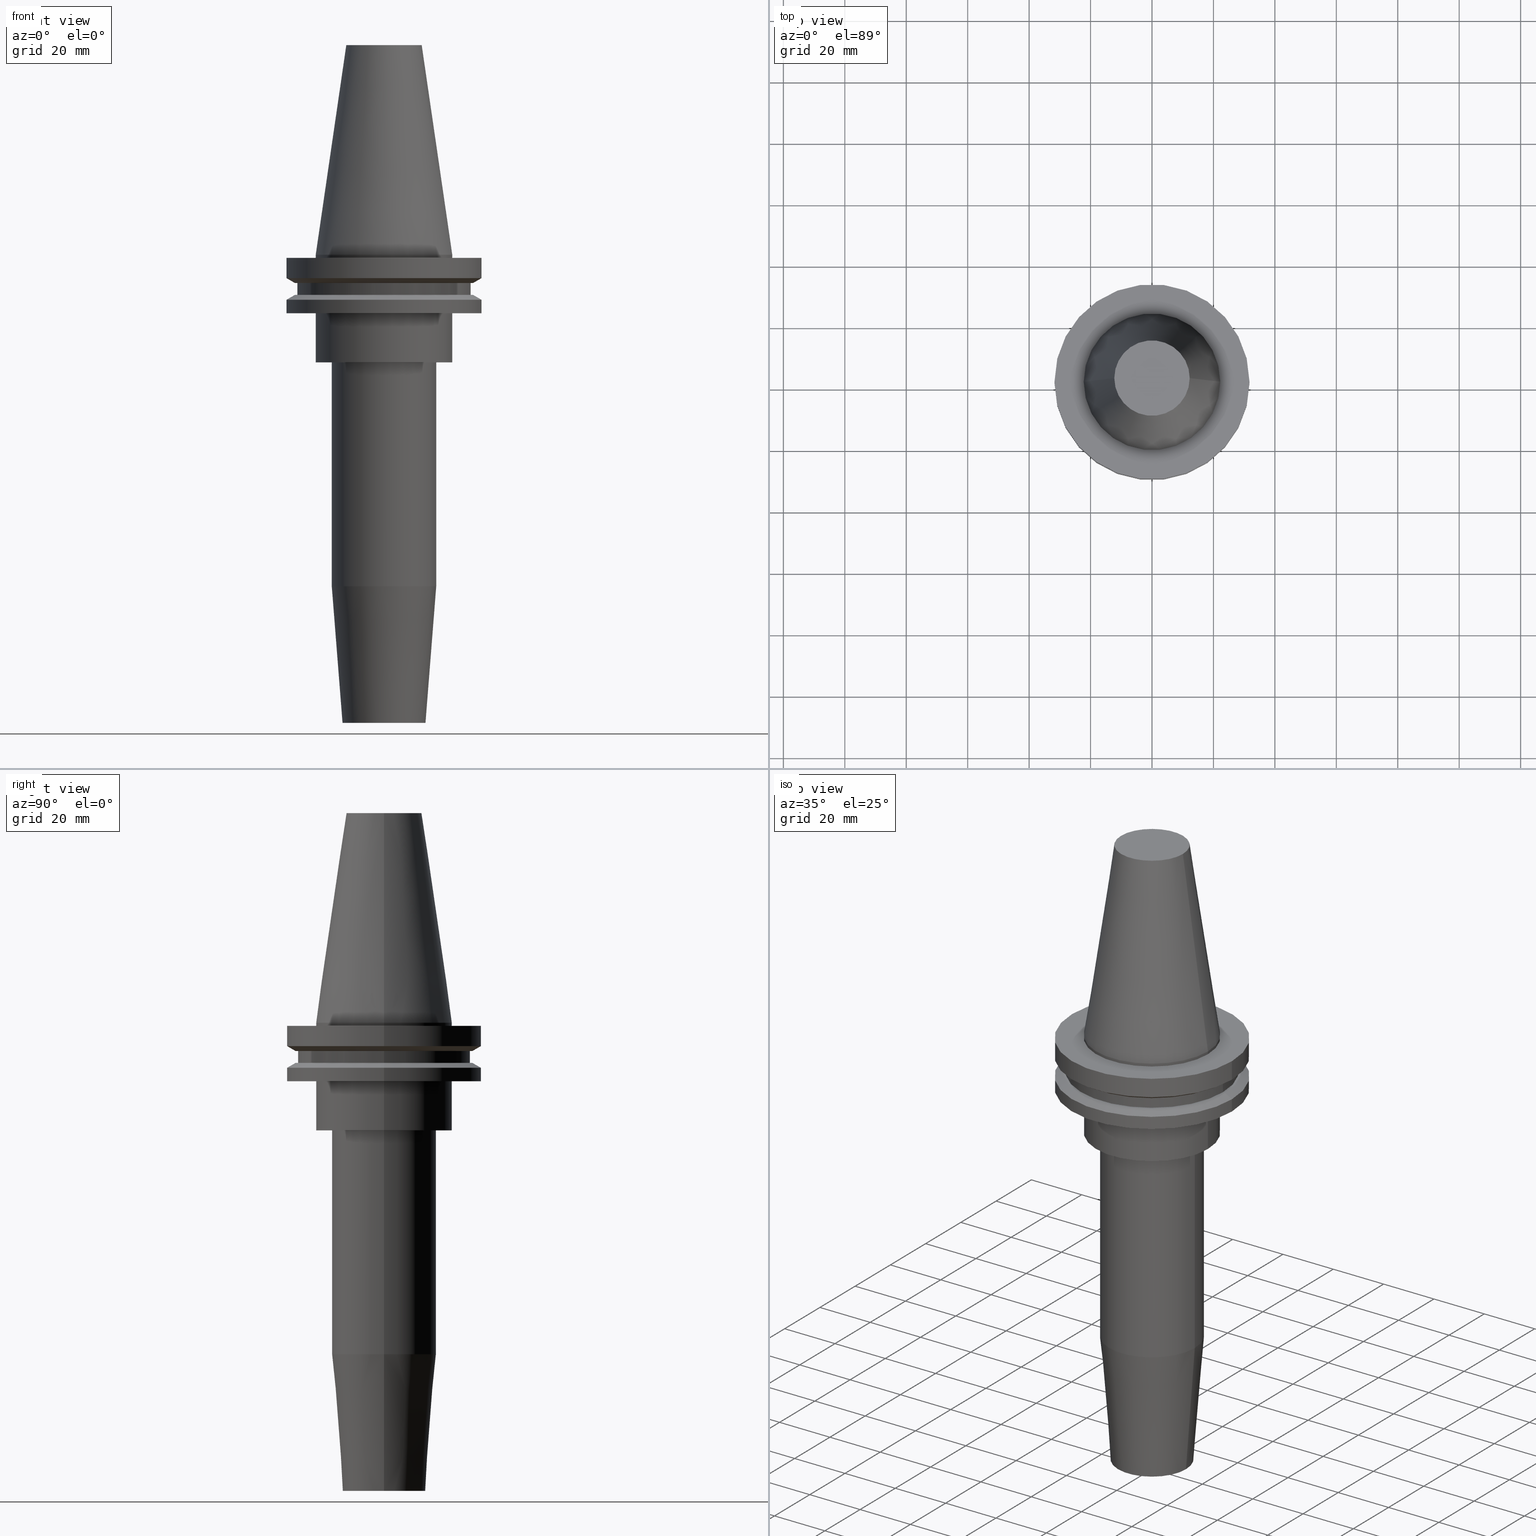
[diagram: canonical four-view strip — front | top / right | iso, engineering-drawing reading convention]
A machine part, canonical four-view strip (front | top / right | iso — engineering-drawing reading convention). The complete STEP part file that produces these views, byte-faithful:
ISO-10303-21;
HEADER;
FILE_DESCRIPTION (( 'STEP AP203' ),
    '1' );
FILE_NAME ('BCV40-SF_625-6.STEP',
    '2022-02-23T17:23:49',
    ( '' ),
    ( '' ),
    'SwSTEP 2.0',
    'SolidWorks 2021',
    '' );
FILE_SCHEMA (( 'CONFIG_CONTROL_DESIGN' ));
ENDSEC;

DATA;
#1 = ORIENTED_EDGE ( 'NONE', *, *, #366, .F. ) ;
#2 = EDGE_CURVE ( 'NONE', #299, #67, #97, .T. ) ;
#3 = CARTESIAN_POINT ( 'NONE',  ( 17.00000000000000000, 0.000000000000000000, -35.04999999999999716 ) ) ;
#4 = DIRECTION ( 'NONE',  ( 1.000000000000000000, 0.000000000000000000, 0.000000000000000000 ) ) ;
#5 = EDGE_LOOP ( 'NONE', ( #167, #199 ) ) ;
#6 = CARTESIAN_POINT ( 'NONE',  ( 12.27178102086201150, 2.112318622904291439E-15, 68.25000000000000000 ) ) ;
#7 = CC_DESIGN_PERSON_AND_ORGANIZATION_ASSIGNMENT ( #710, #705, ( #155 ) ) ;
#8 = AXIS2_PLACEMENT_3D ( 'NONE', #583, #180, #390 ) ;
#9 = DIRECTION ( 'NONE',  ( -0.000000000000000000, -0.000000000000000000, 1.000000000000000000 ) ) ;
#10 = DIRECTION ( 'NONE',  ( -0.000000000000000000, -0.000000000000000000, 1.000000000000000000 ) ) ;
#11 = CARTESIAN_POINT ( 'NONE',  ( 0.000000000000000000, 0.000000000000000000, 68.25000000000000000 ) ) ;
#12 = CIRCLE ( 'NONE', #752, 31.74999999999999289 ) ;
#13 = DIRECTION ( 'NONE',  ( 1.000000000000000000, 0.000000000000000000, 0.000000000000000000 ) ) ;
#14 = CARTESIAN_POINT ( 'NONE',  ( 0.000000000000000000, 13.50000000000000000, -152.4000000000000057 ) ) ;
#15 = ORIENTED_EDGE ( 'NONE', *, *, #812, .T. ) ;
#16 = DIRECTION ( 'NONE',  ( 1.000000000000000000, 0.000000000000000000, 0.000000000000000000 ) ) ;
#17 = CARTESIAN_POINT ( 'NONE',  ( 0.000000000000000000, 0.000000000000000000, -1.000000000000000888 ) ) ;
#18 = EDGE_CURVE ( 'NONE', #796, #535, #21, .T. ) ;
#19 = ORIENTED_EDGE ( 'NONE', *, *, #132, .T. ) ;
#20 = LINE ( 'NONE', #603, #300 ) ;
#21 = LINE ( 'NONE', #347, #446 ) ;
#22 = CONICAL_SURFACE ( 'NONE', #262, 31.75000000000000000, 1.047197551196597853 ) ;
#23 = DIRECTION ( 'NONE',  ( 1.000000000000000000, 0.000000000000000000, 0.000000000000000000 ) ) ;
#24 = ORIENTED_EDGE ( 'NONE', *, *, #66, .F. ) ;
#25 = EDGE_CURVE ( 'NONE', #273, #619, #287, .T. ) ;
#26 = DIRECTION ( 'NONE',  ( 0.1443082272672999711, 1.767266086135276757E-17, -0.9895327864921755756 ) ) ;
#27 = CC_DESIGN_PERSON_AND_ORGANIZATION_ASSIGNMENT ( #630, #50, ( #215 ) ) ;
#28 = CARTESIAN_POINT ( 'NONE',  ( 13.50000000000000000, 0.000000000000000000, -152.4000000000000057 ) ) ;
#29 = CIRCLE ( 'NONE', #477, 12.27178102086201150 ) ;
#30 = EDGE_LOOP ( 'NONE', ( #708, #122 ) ) ;
#31 = CONICAL_SURFACE ( 'NONE', #553, 22.22500000000000142, 0.1448138465474119174 ) ;
#32 = AXIS2_PLACEMENT_3D ( 'NONE', #52, #640, #108 ) ;
#33 = DIRECTION ( 'NONE',  ( -1.000000000000000000, 0.000000000000000000, 0.000000000000000000 ) ) ;
#34 = VERTEX_POINT ( 'NONE', #494 ) ;
#35 = VECTOR ( 'NONE', #444, 1000.000000000000000 ) ;
#36 = CARTESIAN_POINT ( 'NONE',  ( 0.000000000000000000, 0.000000000000000000, -9.205000000000005400 ) ) ;
#37 = ORIENTED_EDGE ( 'NONE', *, *, #99, .T. ) ;
#38 = EDGE_CURVE ( 'NONE', #67, #299, #433, .T. ) ;
#39 = DIRECTION ( 'NONE',  ( 1.000000000000000000, 0.000000000000000000, 0.000000000000000000 ) ) ;
#40 = EDGE_LOOP ( 'NONE', ( #538, #83, #628, #326 ) ) ;
#41 = CARTESIAN_POINT ( 'NONE',  ( 0.000000000000000000, 0.000000000000000000, -1.000000000000000888 ) ) ;
#42 = DIRECTION ( 'NONE',  ( 1.000000000000000000, 0.000000000000000000, 0.000000000000000000 ) ) ;
#43 = ORIENTED_EDGE ( 'NONE', *, *, #318, .F. ) ;
#44 = CC_DESIGN_SECURITY_CLASSIFICATION ( #435, ( #215 ) ) ;
#45 = COORDINATED_UNIVERSAL_TIME_OFFSET ( 6, 0, .BEHIND. ) ;
#46 = DIRECTION ( 'NONE',  ( -0.000000000000000000, -0.000000000000000000, 1.000000000000000000 ) ) ;
#47 = EDGE_CURVE ( 'NONE', #517, #476, #29, .T. ) ;
#48 = DIRECTION ( 'NONE',  ( -0.000000000000000000, -0.000000000000000000, 1.000000000000000000 ) ) ;
#49 = ORIENTED_EDGE ( 'NONE', *, *, #2, .T. ) ;
#50 = PERSON_AND_ORGANIZATION_ROLE ( 'design_supplier' ) ;
#51 = DIRECTION ( 'NONE',  ( -0.000000000000000000, -0.000000000000000000, 1.000000000000000000 ) ) ;
#52 = CARTESIAN_POINT ( 'NONE',  ( 0.000000000000000000, 0.000000000000000000, -9.204999999999991189 ) ) ;
#53 = VERTEX_POINT ( 'NONE', #71 ) ;
#54 = AXIS2_PLACEMENT_3D ( 'NONE', #41, #321, #315 ) ;
#55 = APPROVAL_ROLE ( '' ) ;
#56 = CYLINDRICAL_SURFACE ( 'NONE', #205, 17.00000000000000000 ) ;
#57 = VECTOR ( 'NONE', #609, 1000.000000000000000 ) ;
#58 = VERTEX_POINT ( 'NONE', #338 ) ;
#59 = AXIS2_PLACEMENT_3D ( 'NONE', #680, #817, #88 ) ;
#60 = EDGE_CURVE ( 'NONE', #61, #790, #620, .T. ) ;
#61 = VERTEX_POINT ( 'NONE', #556 ) ;
#62 = DIRECTION ( 'NONE',  ( 1.000000000000000000, 0.000000000000000000, 0.000000000000000000 ) ) ;
#63 = CONICAL_SURFACE ( 'NONE', #593, 28.97919780457007732, 1.047197551196598297 ) ;
#64 = FACE_OUTER_BOUND ( 'NONE', #704, .T. ) ;
#65 = VERTEX_POINT ( 'NONE', #815 ) ;
#66 = EDGE_CURVE ( 'NONE', #428, #535, #150, .T. ) ;
#67 = VERTEX_POINT ( 'NONE', #402 ) ;
#68 = MANIFOLD_SOLID_BREP ( 'SF', #283 ) ;
#69 = PLANE ( 'NONE',  #736 ) ;
#70 = DIRECTION ( 'NONE',  ( 1.000000000000000000, 0.000000000000000000, 0.000000000000000000 ) ) ;
#71 = CARTESIAN_POINT ( 'NONE',  ( -31.75000000000000000, 3.888253587292846476E-15, -1.000000000000000888 ) ) ;
#72 = ORIENTED_EDGE ( 'NONE', *, *, #313, .T. ) ;
#73 = FACE_OUTER_BOUND ( 'NONE', #193, .T. ) ;
#74 = DIRECTION ( 'NONE',  ( -0.000000000000000000, -0.000000000000000000, 1.000000000000000000 ) ) ;
#75 = PLANE ( 'NONE',  #95 ) ;
#76 = ORIENTED_EDGE ( 'NONE', *, *, #128, .F. ) ;
#77 = CARTESIAN_POINT ( 'NONE',  ( 31.75000000000000000, 0.000000000000000000, -1.000000000000000888 ) ) ;
#78 = LOCAL_TIME ( 11, 23, 49.00000000000000000, #233 ) ;
#79 = DIRECTION ( 'NONE',  ( -0.000000000000000000, -0.000000000000000000, 1.000000000000000000 ) ) ;
#80 = ADVANCED_FACE ( 'NONE', ( #660 ), #650, .T. ) ;
#81 = CARTESIAN_POINT ( 'NONE',  ( 31.75000000000000000, 3.888253587292846476E-15, -14.65472339340266572 ) ) ;
#82 = DIRECTION ( 'NONE',  ( 0.000000000000000000, -0.000000000000000000, 1.000000000000000000 ) ) ;
#83 = ORIENTED_EDGE ( 'NONE', *, *, #686, .T. ) ;
#84 = CARTESIAN_POINT ( 'NONE',  ( -22.22499999999999787, 2.721777511104992454E-15, -35.04999999999999716 ) ) ;
#85 = VERTEX_POINT ( 'NONE', #267 ) ;
#86 = CIRCLE ( 'NONE', #54, 31.75000000000000000 ) ;
#87 = EDGE_CURVE ( 'NONE', #53, #403, #246, .T. ) ;
#88 = DIRECTION ( 'NONE',  ( 1.000000000000000000, 0.000000000000000000, 0.000000000000000000 ) ) ;
#89 = CARTESIAN_POINT ( 'NONE',  ( 31.75000000000000000, 0.000000000000000000, -7.605276606597335842 ) ) ;
#90 = AXIS2_PLACEMENT_3D ( 'NONE', #676, #74, #4 ) ;
#91 = AXIS2_PLACEMENT_3D ( 'NONE', #480, #148, #464 ) ;
#92 = CARTESIAN_POINT ( 'NONE',  ( 0.000000000000000000, 0.000000000000000000, -35.04999999999999716 ) ) ;
#93 = DIRECTION ( 'NONE',  ( 1.000000000000000000, 0.000000000000000000, 0.000000000000000000 ) ) ;
#94 = EDGE_CURVE ( 'NONE', #237, #164, #573, .T. ) ;
#95 = AXIS2_PLACEMENT_3D ( 'NONE', #14, #82, #351 ) ;
#96 = ORIENTED_EDGE ( 'NONE', *, *, #348, .T. ) ;
#97 = CIRCLE ( 'NONE', #587, 17.00000000000000000 ) ;
#98 = CARTESIAN_POINT ( 'NONE',  ( 0.000000000000000000, 0.000000000000000000, 0.000000000000000000 ) ) ;
#99 = EDGE_CURVE ( 'NONE', #127, #731, #673, .T. ) ;
#100 = VERTEX_POINT ( 'NONE', #134 ) ;
#101 = CIRCLE ( 'NONE', #382, 22.22500000000000142 ) ;
#102 = COORDINATED_UNIVERSAL_TIME_OFFSET ( 6, 0, .BEHIND. ) ;
#103 = DIRECTION ( 'NONE',  ( -0.000000000000000000, -0.000000000000000000, 1.000000000000000000 ) ) ;
#104 = VERTEX_POINT ( 'NONE', #665 ) ;
#105 = ADVANCED_FACE ( 'NONE', ( #739, #677 ), #75, .F. ) ;
#106 = DATE_AND_TIME ( #644, #653 ) ;
#107 = CARTESIAN_POINT ( 'NONE',  ( -22.22500000000000142, 0.000000000000000000, 0.000000000000000000 ) ) ;
#108 = DIRECTION ( 'NONE',  ( 1.000000000000000000, 0.000000000000000000, 0.000000000000000000 ) ) ;
#109 = ORIENTED_EDGE ( 'NONE', *, *, #266, .F. ) ;
#110 = EDGE_CURVE ( 'NONE', #65, #160, #778, .T. ) ;
#111 = APPROVAL_STATUS ( 'not_yet_approved' ) ;
#112 = CARTESIAN_POINT ( 'NONE',  ( 0.000000000000000000, 0.000000000000000000, -152.4000000000000057 ) ) ;
#113 = CARTESIAN_POINT ( 'NONE',  ( 0.000000000000000000, 0.000000000000000000, -14.65472339340266572 ) ) ;
#114 = ORIENTED_EDGE ( 'NONE', *, *, #845, .T. ) ;
#115 = APPROVAL_ROLE ( '' ) ;
#116 = DIRECTION ( 'NONE',  ( 1.000000000000000000, 0.000000000000000000, 0.000000000000000000 ) ) ;
#117 = FACE_OUTER_BOUND ( 'NONE', #718, .T. ) ;
#118 = ORIENTED_EDGE ( 'NONE', *, *, #518, .F. ) ;
#119 = CALENDAR_DATE ( 2022, 23, 2 ) ;
#120 = CARTESIAN_POINT ( 'NONE',  ( 0.000000000000000000, 0.000000000000000000, -152.4000000000000057 ) ) ;
#121 = DIRECTION ( 'NONE',  ( -0.000000000000000000, -0.000000000000000000, 1.000000000000000000 ) ) ;
#122 = ORIENTED_EDGE ( 'NONE', *, *, #94, .F. ) ;
#123 = ORIENTED_EDGE ( 'NONE', *, *, #616, .F. ) ;
#124 = AXIS2_PLACEMENT_3D ( 'NONE', #777, #439, #184 ) ;
#125 = FACE_BOUND ( 'NONE', #486, .T. ) ;
#126 = CARTESIAN_POINT ( 'NONE',  ( 0.000000000000000000, 0.000000000000000000, -13.05499999999999794 ) ) ;
#127 = VERTEX_POINT ( 'NONE', #28 ) ;
#128 = EDGE_CURVE ( 'NONE', #198, #104, #584, .T. ) ;
#129 = LINE ( 'NONE', #201, #272 ) ;
#130 = DIRECTION ( 'NONE',  ( 1.000000000000000000, 0.000000000000000000, 0.000000000000000000 ) ) ;
#131 = ORIENTED_EDGE ( 'NONE', *, *, #87, .T. ) ;
#132 = EDGE_CURVE ( 'NONE', #127, #34, #520, .T. ) ;
#133 = CYLINDRICAL_SURFACE ( 'NONE', #816, 17.00000000000000000 ) ;
#134 = CARTESIAN_POINT ( 'NONE',  ( 22.22500000000000142, 2.721777511104992849E-15, 0.000000000000000000 ) ) ;
#135 = APPLICATION_CONTEXT ( 'configuration controlled 3d designs of mechanical parts and assemblies' ) ;
#136 = ORIENTED_EDGE ( 'NONE', *, *, #559, .F. ) ;
#137 = EDGE_CURVE ( 'NONE', #513, #58, #421, .T. ) ;
#138 = VECTOR ( 'NONE', #271, 1000.000000000000000 ) ;
#139 = DIRECTION ( 'NONE',  ( -0.8660254037844389297, 1.060575238724907285E-16, 0.4999999999999995004 ) ) ;
#140 = CARTESIAN_POINT ( 'NONE',  ( 0.000000000000000000, 0.000000000000000000, 68.25000000000000000 ) ) ;
#141 = DIRECTION ( 'NONE',  ( 1.000000000000000000, 0.000000000000000000, 0.000000000000000000 ) ) ;
#142 = APPROVAL_PERSON_ORGANIZATION ( #771, #542, #115 ) ;
#143 =( GEOMETRIC_REPRESENTATION_CONTEXT ( 3 ) GLOBAL_UNCERTAINTY_ASSIGNED_CONTEXT ( ( #642 ) ) GLOBAL_UNIT_ASSIGNED_CONTEXT ( ( #501, #569, #350 ) ) REPRESENTATION_CONTEXT ( 'NONE', 'WORKASPACE' ) );
#144 = DIRECTION ( 'NONE',  ( -0.000000000000000000, -0.000000000000000000, 1.000000000000000000 ) ) ;
#145 = ORIENTED_EDGE ( 'NONE', *, *, #25, .T. ) ;
#146 = AXIS2_PLACEMENT_3D ( 'NONE', #550, #487, #345 ) ;
#147 = ORIENTED_EDGE ( 'NONE', *, *, #18, .T. ) ;
#148 = DIRECTION ( 'NONE',  ( -0.000000000000000000, -0.000000000000000000, 1.000000000000000000 ) ) ;
#149 = CARTESIAN_POINT ( 'NONE',  ( 0.000000000000000000, 28.97919780457007732, -9.204999999999996518 ) ) ;
#150 = LINE ( 'NONE', #81, #57 ) ;
#151 = CARTESIAN_POINT ( 'NONE',  ( 0.000000000000000000, 22.22499999999999787, -35.04999999999999716 ) ) ;
#152 = MECHANICAL_CONTEXT ( 'NONE', #135, 'mechanical' ) ;
#153 = CARTESIAN_POINT ( 'NONE',  ( -28.17999999999999972, 3.451054679997241634E-15, -9.204999999999991189 ) ) ;
#154 = AXIS2_PLACEMENT_3D ( 'NONE', #385, #311, #784 ) ;
#155 = PRODUCT_DEFINITION ( 'UNKNOWN', '', #215, #496 ) ;
#156 = LINE ( 'NONE', #359, #163 ) ;
#157 = AXIS2_PLACEMENT_3D ( 'NONE', #493, #504, #747 ) ;
#158 = ADVANCED_FACE ( 'NONE', ( #234 ), #31, .T. ) ;
#159 = DIRECTION ( 'NONE',  ( 1.000000000000000000, 0.000000000000000000, 0.000000000000000000 ) ) ;
#160 = VERTEX_POINT ( 'NONE', #298 ) ;
#161 = EDGE_CURVE ( 'NONE', #457, #216, #224, .T. ) ;
#162 = CARTESIAN_POINT ( 'NONE',  ( 0.000000000000000000, 0.000000000000000000, 68.25000000000000000 ) ) ;
#163 = VECTOR ( 'NONE', #697, 1000.000000000000000 ) ;
#164 = VERTEX_POINT ( 'NONE', #502 ) ;
#165 = AXIS2_PLACEMENT_3D ( 'NONE', #544, #276, #342 ) ;
#166 = DIRECTION ( 'NONE',  ( -0.000000000000000000, -0.000000000000000000, 1.000000000000000000 ) ) ;
#167 = ORIENTED_EDGE ( 'NONE', *, *, #678, .F. ) ;
#168 = AXIS2_PLACEMENT_3D ( 'NONE', #406, #202, #70 ) ;
#169 = DATE_AND_TIME ( #119, #695 ) ;
#170 = DIRECTION ( 'NONE',  ( 1.000000000000000000, 0.000000000000000000, 0.000000000000000000 ) ) ;
#171 = DIRECTION ( 'NONE',  ( 1.000000000000000000, 0.000000000000000000, 0.000000000000000000 ) ) ;
#172 = ORIENTED_EDGE ( 'NONE', *, *, #218, .T. ) ;
#173 = EDGE_CURVE ( 'NONE', #535, #216, #462, .T. ) ;
#174 = CALENDAR_DATE ( 2022, 23, 2 ) ;
#175 = CARTESIAN_POINT ( 'NONE',  ( 0.000000000000000000, 0.000000000000000000, 0.000000000000000000 ) ) ;
#176 = LINE ( 'NONE', #308, #35 ) ;
#177 = VERTEX_POINT ( 'NONE', #153 ) ;
#178 = AXIS2_PLACEMENT_3D ( 'NONE', #751, #291, #829 ) ;
#179 = APPLICATION_PROTOCOL_DEFINITION ( 'international standard', 'config_control_design', 1994, #371 ) ;
#180 = DIRECTION ( 'NONE',  ( -0.000000000000000000, -0.000000000000000000, 1.000000000000000000 ) ) ;
#181 = DIRECTION ( 'NONE',  ( 1.000000000000000000, 0.000000000000000000, 0.000000000000000000 ) ) ;
#182 = ORIENTED_EDGE ( 'NONE', *, *, #47, .T. ) ;
#183 = AXIS2_PLACEMENT_3D ( 'NONE', #707, #48, #450 ) ;
#184 = DIRECTION ( 'NONE',  ( -1.000000000000000000, 0.000000000000000000, -0.000000000000000000 ) ) ;
#185 = DIRECTION ( 'NONE',  ( -0.000000000000000000, -0.000000000000000000, 1.000000000000000000 ) ) ;
#186 = ORIENTED_EDGE ( 'NONE', *, *, #292, .T. ) ;
#187 = EDGE_LOOP ( 'NONE', ( #329, #293, #721, #482 ) ) ;
#188 = COORDINATED_UNIVERSAL_TIME_OFFSET ( 6, 0, .BEHIND. ) ;
#189 = CARTESIAN_POINT ( 'NONE',  ( -31.75000000000000000, 3.888253587292846476E-15, 68.25000000000000000 ) ) ;
#190 = EDGE_CURVE ( 'NONE', #595, #241, #194, .T. ) ;
#191 = DIRECTION ( 'NONE',  ( -1.000000000000000000, 0.000000000000000000, 0.000000000000000000 ) ) ;
#192 = EDGE_LOOP ( 'NONE', ( #461, #96, #651, #689 ) ) ;
#193 = EDGE_LOOP ( 'NONE', ( #451, #259, #296, #309 ) ) ;
#194 = CIRCLE ( 'NONE', #279, 7.937500000000007105 ) ;
#195 = AXIS2_PLACEMENT_3D ( 'NONE', #422, #166, #159 ) ;
#196 = ADVANCED_BREP_SHAPE_REPRESENTATION ( 'BCV40-SF_625-6', ( #68, #157 ), #143 ) ;
#197 = DIRECTION ( 'NONE',  ( 1.000000000000000000, 0.000000000000000000, 0.000000000000000000 ) ) ;
#198 = VERTEX_POINT ( 'NONE', #89 ) ;
#199 = ORIENTED_EDGE ( 'NONE', *, *, #110, .F. ) ;
#200 = AXIS2_PLACEMENT_3D ( 'NONE', #401, #79, #481 ) ;
#201 = CARTESIAN_POINT ( 'NONE',  ( 28.97919780457007732, 0.000000000000000000, -9.205000000000005400 ) ) ;
#202 = DIRECTION ( 'NONE',  ( -0.000000000000000000, -0.000000000000000000, 1.000000000000000000 ) ) ;
#203 = DIRECTION ( 'NONE',  ( 1.000000000000000000, 0.000000000000000000, 0.000000000000000000 ) ) ;
#204 = EDGE_CURVE ( 'NONE', #775, #626, #613, .T. ) ;
#205 = AXIS2_PLACEMENT_3D ( 'NONE', #813, #611, #470 ) ;
#206 = CARTESIAN_POINT ( 'NONE',  ( 0.000000000000000000, 0.000000000000000000, -13.05499999999999794 ) ) ;
#207 = CARTESIAN_POINT ( 'NONE',  ( 0.000000000000000000, 0.000000000000000000, 68.25000000000000000 ) ) ;
#208 = ORIENTED_EDGE ( 'NONE', *, *, #839, .T. ) ;
#209 = VECTOR ( 'NONE', #26, 999.9999999999998863 ) ;
#210 = CYLINDRICAL_SURFACE ( 'NONE', #837, 28.17999999999999972 ) ;
#211 = DIRECTION ( 'NONE',  ( -0.000000000000000000, -0.000000000000000000, 1.000000000000000000 ) ) ;
#212 = CARTESIAN_POINT ( 'NONE',  ( 0.000000000000000000, 0.000000000000000000, -19.04999999999999716 ) ) ;
#213 = EDGE_LOOP ( 'NONE', ( #693, #724 ) ) ;
#214 = CARTESIAN_POINT ( 'NONE',  ( -12.27178102086201150, 0.000000000000000000, 68.25000000000000000 ) ) ;
#215 = PRODUCT_DEFINITION_FORMATION_WITH_SPECIFIED_SOURCE ( 'ANY', '', #423, .NOT_KNOWN. ) ;
#216 = VERTEX_POINT ( 'NONE', #757 ) ;
#217 = CARTESIAN_POINT ( 'NONE',  ( 31.75000000000000000, 0.000000000000000000, -14.65472339340266572 ) ) ;
#218 = EDGE_CURVE ( 'NONE', #34, #330, #572, .T. ) ;
#219 = ORIENTED_EDGE ( 'NONE', *, *, #447, .T. ) ;
#220 = CIRCLE ( 'NONE', #729, 22.22500000000000142 ) ;
#221 = DIRECTION ( 'NONE',  ( -0.000000000000000000, -0.000000000000000000, 1.000000000000000000 ) ) ;
#222 = ADVANCED_FACE ( 'NONE', ( #427 ), #22, .T. ) ;
#223 = EDGE_CURVE ( 'NONE', #517, #100, #294, .T. ) ;
#224 = LINE ( 'NONE', #692, #264 ) ;
#225 = LOCAL_TIME ( 11, 23, 49.00000000000000000, #188 ) ;
#226 = ORIENTED_EDGE ( 'NONE', *, *, #559, .T. ) ;
#227 = EDGE_CURVE ( 'NONE', #241, #58, #156, .T. ) ;
#228 = DIRECTION ( 'NONE',  ( -0.1443082272672999711, 0.000000000000000000, -0.9895327864921755756 ) ) ;
#229 = ORIENTED_EDGE ( 'NONE', *, *, #87, .F. ) ;
#230 = CARTESIAN_POINT ( 'NONE',  ( 0.000000000000000000, 0.000000000000000000, -152.4000000000000057 ) ) ;
#231 = AXIS2_PLACEMENT_3D ( 'NONE', #355, #748, #39 ) ;
#232 = EDGE_LOOP ( 'NONE', ( #43, #441, #567, #855 ) ) ;
#233 = COORDINATED_UNIVERSAL_TIME_OFFSET ( 6, 0, .BEHIND. ) ;
#234 = FACE_OUTER_BOUND ( 'NONE', #830, .T. ) ;
#235 = ADVANCED_FACE ( 'NONE', ( #509 ), #821, .T. ) ;
#236 = CARTESIAN_POINT ( 'NONE',  ( 28.17999999999999972, 0.000000000000000000, -9.204999999999991189 ) ) ;
#237 = VERTEX_POINT ( 'NONE', #368 ) ;
#238 = CIRCLE ( 'NONE', #183, 12.27178102086201150 ) ;
#239 = FACE_OUTER_BOUND ( 'NONE', #245, .T. ) ;
#240 = CARTESIAN_POINT ( 'NONE',  ( 31.75000000000000000, 0.000000000000000000, 68.25000000000000000 ) ) ;
#241 = VERTEX_POINT ( 'NONE', #826 ) ;
#242 = VECTOR ( 'NONE', #244, 1000.000000000000000 ) ;
#243 = PERSON_AND_ORGANIZATION_ROLE ( 'classification_officer' ) ;
#244 = DIRECTION ( 'NONE',  ( -0.000000000000000000, -0.000000000000000000, 1.000000000000000000 ) ) ;
#245 = EDGE_LOOP ( 'NONE', ( #24, #510, #844, #304 ) ) ;
#246 = CIRCLE ( 'NONE', #165, 31.75000000000000000 ) ;
#247 = FACE_OUTER_BOUND ( 'NONE', #742, .T. ) ;
#248 = CIRCLE ( 'NONE', #484, 28.17999999999999972 ) ;
#249 = CARTESIAN_POINT ( 'NONE',  ( -31.75000000000000000, 3.888253587292846476E-15, 68.25000000000000000 ) ) ;
#250 = ORIENTED_EDGE ( 'NONE', *, *, #678, .T. ) ;
#251 = ORIENTED_EDGE ( 'NONE', *, *, #424, .T. ) ;
#252 = DATE_AND_TIME ( #852, #485 ) ;
#253 = DIRECTION ( 'NONE',  ( -0.000000000000000000, -0.000000000000000000, 1.000000000000000000 ) ) ;
#254 = LINE ( 'NONE', #249, #624 ) ;
#255 = EDGE_LOOP ( 'NONE', ( #615, #463 ) ) ;
#256 = VERTEX_POINT ( 'NONE', #627 ) ;
#257 = CARTESIAN_POINT ( 'NONE',  ( 28.97919780457008088, 3.718590885307660666E-15, -13.05499999999999794 ) ) ;
#258 = DIRECTION ( 'NONE',  ( 1.000000000000000000, 0.000000000000000000, 0.000000000000000000 ) ) ;
#259 = ORIENTED_EDGE ( 'NONE', *, *, #709, .T. ) ;
#260 = CIRCLE ( 'NONE', #32, 28.17999999999999972 ) ;
#261 = ORIENTED_EDGE ( 'NONE', *, *, #649, .F. ) ;
#262 = AXIS2_PLACEMENT_3D ( 'NONE', #688, #625, #33 ) ;
#263 = LINE ( 'NONE', #541, #434 ) ;
#264 = VECTOR ( 'NONE', #570, 1000.000000000000000 ) ;
#265 = LINE ( 'NONE', #543, #576 ) ;
#266 = EDGE_CURVE ( 'NONE', #476, #369, #498, .T. ) ;
#267 = CARTESIAN_POINT ( 'NONE',  ( -31.74999999999999289, 3.888253587292845687E-15, -19.04999999999999716 ) ) ;
#268 = CC_DESIGN_APPROVAL ( #691, ( #215 ) ) ;
#269 = DIRECTION ( 'NONE',  ( -0.000000000000000000, -0.000000000000000000, 1.000000000000000000 ) ) ;
#270 = DIRECTION ( 'NONE',  ( -0.000000000000000000, -0.000000000000000000, 1.000000000000000000 ) ) ;
#271 = DIRECTION ( 'NONE',  ( -0.000000000000000000, -0.000000000000000000, 1.000000000000000000 ) ) ;
#272 = VECTOR ( 'NONE', #280, 1000.000000000000000 ) ;
#273 = VERTEX_POINT ( 'NONE', #618 ) ;
#274 = DIRECTION ( 'NONE',  ( 1.000000000000000000, 0.000000000000000000, 0.000000000000000000 ) ) ;
#275 = PLANE ( 'NONE',  #468 ) ;
#276 = DIRECTION ( 'NONE',  ( -0.000000000000000000, -0.000000000000000000, 1.000000000000000000 ) ) ;
#277 = ORIENTED_EDGE ( 'NONE', *, *, #60, .T. ) ;
#278 = ADVANCED_FACE ( 'NONE', ( #505 ), #808, .T. ) ;
#279 = AXIS2_PLACEMENT_3D ( 'NONE', #230, #621, #681 ) ;
#280 = DIRECTION ( 'NONE',  ( 0.8660254037844389297, 0.000000000000000000, 0.4999999999999995004 ) ) ;
#281 = CARTESIAN_POINT ( 'NONE',  ( -22.22500000000000142, 2.721777511104992849E-15, -19.04999999999999716 ) ) ;
#282 = DIRECTION ( 'NONE',  ( 1.000000000000000000, 0.000000000000000000, 0.000000000000000000 ) ) ;
#283 = CLOSED_SHELL ( 'NONE', ( #605, #305, #832, #822, #284, #568, #474, #222, #530, #235, #158, #594, #629, #537, #394, #662, #622, #343, #331, #725, #805, #278, #370, #507, #301, #399, #80, #105, #768, #776 ) ) ;
#284 = ADVANCED_FACE ( 'NONE', ( #762 ), #436, .T. ) ;
#285 = FACE_OUTER_BOUND ( 'NONE', #824, .T. ) ;
#286 = APPROVAL_PERSON_ORGANIZATION ( #575, #730, #55 ) ;
#287 = LINE ( 'NONE', #612, #138 ) ;
#288 = DIRECTION ( 'NONE',  ( 1.000000000000000000, 0.000000000000000000, 0.000000000000000000 ) ) ;
#289 = EDGE_CURVE ( 'NONE', #403, #53, #86, .T. ) ;
#290 = DIRECTION ( 'NONE',  ( 1.000000000000000000, 0.000000000000000000, 0.000000000000000000 ) ) ;
#291 = DIRECTION ( 'NONE',  ( -0.000000000000000000, -0.000000000000000000, 1.000000000000000000 ) ) ;
#292 = EDGE_CURVE ( 'NONE', #790, #61, #679, .T. ) ;
#293 = ORIENTED_EDGE ( 'NONE', *, *, #190, .F. ) ;
#294 = LINE ( 'NONE', #560, #209 ) ;
#295 = AXIS2_PLACEMENT_3D ( 'NONE', #149, #341, #258 ) ;
#296 = ORIENTED_EDGE ( 'NONE', *, *, #313, .F. ) ;
#297 = DIRECTION ( 'NONE',  ( -0.000000000000000000, -0.000000000000000000, 1.000000000000000000 ) ) ;
#298 = CARTESIAN_POINT ( 'NONE',  ( 22.22500000000000142, 0.000000000000000000, -1.000000000000000888 ) ) ;
#299 = VERTEX_POINT ( 'NONE', #3 ) ;
#300 = VECTOR ( 'NONE', #139, 1000.000000000000000 ) ;
#301 = ADVANCED_FACE ( 'NONE', ( #596 ), #715, .T. ) ;
#302 = DIRECTION ( 'NONE',  ( 1.000000000000000000, 0.000000000000000000, 0.000000000000000000 ) ) ;
#303 = AXIS2_PLACEMENT_3D ( 'NONE', #590, #327, #701 ) ;
#304 = ORIENTED_EDGE ( 'NONE', *, *, #649, .T. ) ;
#305 = ADVANCED_FACE ( 'NONE', ( #719 ), #419, .T. ) ;
#306 = CIRCLE ( 'NONE', #809, 31.75000000000000000 ) ;
#307 = CARTESIAN_POINT ( 'NONE',  ( -17.00000000000000000, 2.081899558550500280E-15, 0.000000000000000000 ) ) ;
#308 = CARTESIAN_POINT ( 'NONE',  ( -28.17999999999999972, 3.451054679997241634E-15, 68.25000000000000000 ) ) ;
#309 = ORIENTED_EDGE ( 'NONE', *, *, #25, .F. ) ;
#310 = AXIS2_PLACEMENT_3D ( 'NONE', #687, #358, #290 ) ;
#311 = DIRECTION ( 'NONE',  ( -0.000000000000000000, -0.000000000000000000, 1.000000000000000000 ) ) ;
#312 = PLANE ( 'NONE',  #643 ) ;
#313 = EDGE_CURVE ( 'NONE', #619, #177, #508, .T. ) ;
#314 = ORIENTED_EDGE ( 'NONE', *, *, #479, .F. ) ;
#315 = DIRECTION ( 'NONE',  ( 1.000000000000000000, 0.000000000000000000, 0.000000000000000000 ) ) ;
#316 = DIRECTION ( 'NONE',  ( 0.000000000000000000, -0.000000000000000000, 1.000000000000000000 ) ) ;
#317 = EDGE_LOOP ( 'NONE', ( #666, #395, #362, #623 ) ) ;
#318 = EDGE_CURVE ( 'NONE', #330, #67, #788, .T. ) ;
#319 = AXIS2_PLACEMENT_3D ( 'NONE', #807, #412, #745 ) ;
#320 = COORDINATED_UNIVERSAL_TIME_OFFSET ( 6, 0, .BEHIND. ) ;
#321 = DIRECTION ( 'NONE',  ( -0.000000000000000000, -0.000000000000000000, 1.000000000000000000 ) ) ;
#322 = AXIS2_PLACEMENT_3D ( 'NONE', #525, #769, #171 ) ;
#323 = CYLINDRICAL_SURFACE ( 'NONE', #322, 31.75000000000000000 ) ;
#324 = ORIENTED_EDGE ( 'NONE', *, *, #753, .F. ) ;
#325 = CC_DESIGN_APPROVAL ( #542, ( #155 ) ) ;
#326 = ORIENTED_EDGE ( 'NONE', *, *, #571, .F. ) ;
#327 = DIRECTION ( 'NONE',  ( -0.000000000000000000, -0.000000000000000000, 1.000000000000000000 ) ) ;
#328 = FACE_OUTER_BOUND ( 'NONE', #780, .T. ) ;
#329 = ORIENTED_EDGE ( 'NONE', *, *, #227, .F. ) ;
#330 = VERTEX_POINT ( 'NONE', #767 ) ;
#331 = ADVANCED_FACE ( 'NONE', ( #125, #577 ), #396, .F. ) ;
#332 = AXIS2_PLACEMENT_3D ( 'NONE', #836, #580, #62 ) ;
#333 = DIRECTION ( 'NONE',  ( -1.000000000000000000, 0.000000000000000000, -0.000000000000000000 ) ) ;
#334 = CARTESIAN_POINT ( 'NONE',  ( -22.22500000000000142, 2.721777511104992849E-15, 68.25000000000000000 ) ) ;
#335 = CARTESIAN_POINT ( 'NONE',  ( 0.000000000000000000, 0.000000000000000000, -152.4000000000000057 ) ) ;
#336 = CYLINDRICAL_SURFACE ( 'NONE', #483, 31.75000000000000000 ) ;
#337 = CYLINDRICAL_SURFACE ( 'NONE', #168, 7.937500000000005329 ) ;
#338 = CARTESIAN_POINT ( 'NONE',  ( -7.937500000000003553, 9.720633968232124078E-16, -113.4000000000000057 ) ) ;
#339 = ORIENTED_EDGE ( 'NONE', *, *, #161, .F. ) ;
#340 = DIRECTION ( 'NONE',  ( -0.000000000000000000, -0.000000000000000000, 1.000000000000000000 ) ) ;
#341 = DIRECTION ( 'NONE',  ( 0.000000000000000000, -0.000000000000000000, 1.000000000000000000 ) ) ;
#342 = DIRECTION ( 'NONE',  ( 1.000000000000000000, 0.000000000000000000, 0.000000000000000000 ) ) ;
#343 = ADVANCED_FACE ( 'NONE', ( #239 ), #374, .T. ) ;
#344 = ORIENTED_EDGE ( 'NONE', *, *, #782, .T. ) ;
#345 = DIRECTION ( 'NONE',  ( 1.000000000000000000, 0.000000000000000000, 0.000000000000000000 ) ) ;
#346 = CARTESIAN_POINT ( 'NONE',  ( 17.00000000000000000, 0.000000000000000000, -107.9282834233838457 ) ) ;
#347 = CARTESIAN_POINT ( 'NONE',  ( 31.75000000000000000, 0.000000000000000000, 68.25000000000000000 ) ) ;
#348 = EDGE_CURVE ( 'NONE', #85, #216, #772, .T. ) ;
#349 = LINE ( 'NONE', #614, #756 ) ;
#350 =( NAMED_UNIT ( * ) SI_UNIT ( $, .STERADIAN. ) SOLID_ANGLE_UNIT ( ) );
#351 = DIRECTION ( 'NONE',  ( 1.000000000000000000, 0.000000000000000000, 0.000000000000000000 ) ) ;
#352 = PLANE ( 'NONE',  #763 ) ;
#353 = CC_DESIGN_APPROVAL ( #730, ( #435 ) ) ;
#354 = PERSON_AND_ORGANIZATION ( #714, #524 ) ;
#355 = CARTESIAN_POINT ( 'NONE',  ( 0.000000000000000000, 0.000000000000000000, -14.65472339340266572 ) ) ;
#356 = CIRCLE ( 'NONE', #91, 17.00000000000000000 ) ;
#357 = EDGE_CURVE ( 'NONE', #34, #127, #429, .T. ) ;
#358 = DIRECTION ( 'NONE',  ( -0.000000000000000000, -0.000000000000000000, 1.000000000000000000 ) ) ;
#359 = CARTESIAN_POINT ( 'NONE',  ( -7.937500000000005329, 9.720633968232124078E-16, 0.000000000000000000 ) ) ;
#360 = EDGE_LOOP ( 'NONE', ( #586, #376, #545, #610 ) ) ;
#361 = DIRECTION ( 'NONE',  ( 0.000000000000000000, 0.000000000000000000, -1.000000000000000000 ) ) ;
#362 = ORIENTED_EDGE ( 'NONE', *, *, #266, .T. ) ;
#363 = CIRCLE ( 'NONE', #683, 28.97919780457008088 ) ;
#364 = DIRECTION ( 'NONE',  ( -0.000000000000000000, -0.000000000000000000, 1.000000000000000000 ) ) ;
#365 = ORIENTED_EDGE ( 'NONE', *, *, #386, .T. ) ;
#366 = EDGE_CURVE ( 'NONE', #100, #369, #220, .T. ) ;
#367 = SHAPE_DEFINITION_REPRESENTATION ( #674, #196 ) ;
#368 = CARTESIAN_POINT ( 'NONE',  ( -28.97919780457007732, 3.718590885307660666E-15, -9.205000000000005400 ) ) ;
#369 = VERTEX_POINT ( 'NONE', #107 ) ;
#370 = ADVANCED_FACE ( 'NONE', ( #459 ), #373, .T. ) ;
#371 = APPLICATION_CONTEXT ( 'configuration controlled 3d designs of mechanical parts and assemblies' ) ;
#372 = APPROVAL_STATUS ( 'not_yet_approved' ) ;
#373 = CYLINDRICAL_SURFACE ( 'NONE', #404, 31.75000000000000000 ) ;
#374 = CONICAL_SURFACE ( 'NONE', #773, 31.75000000000000000, 1.047197551196597853 ) ;
#375 = FACE_BOUND ( 'NONE', #811, .T. ) ;
#376 = ORIENTED_EDGE ( 'NONE', *, *, #110, .T. ) ;
#377 = EDGE_CURVE ( 'NONE', #241, #595, #702, .T. ) ;
#378 = APPROVAL_DATE_TIME ( #169, #691 ) ;
#379 = DIRECTION ( 'NONE',  ( -0.000000000000000000, -0.000000000000000000, 1.000000000000000000 ) ) ;
#380 = LINE ( 'NONE', #455, #783 ) ;
#381 = ORIENTED_EDGE ( 'NONE', *, *, #227, .T. ) ;
#382 = AXIS2_PLACEMENT_3D ( 'NONE', #632, #185, #42 ) ;
#383 = CIRCLE ( 'NONE', #146, 28.97919780457007732 ) ;
#384 = PERSON_AND_ORGANIZATION_ROLE ( 'design_owner' ) ;
#385 = CARTESIAN_POINT ( 'NONE',  ( 0.000000000000000000, 0.000000000000000000, 68.25000000000000000 ) ) ;
#386 = EDGE_CURVE ( 'NONE', #457, #428, #842, .T. ) ;
#387 = CYLINDRICAL_SURFACE ( 'NONE', #200, 28.17999999999999972 ) ;
#388 = ORIENTED_EDGE ( 'NONE', *, *, #812, .F. ) ;
#389 = PERSON_AND_ORGANIZATION ( #714, #524 ) ;
#390 = DIRECTION ( 'NONE',  ( 1.000000000000000000, 0.000000000000000000, 0.000000000000000000 ) ) ;
#391 = LINE ( 'NONE', #240, #558 ) ;
#392 = ORIENTED_EDGE ( 'NONE', *, *, #845, .F. ) ;
#393 = AXIS2_PLACEMENT_3D ( 'NONE', #120, #46, #532 ) ;
#394 = ADVANCED_FACE ( 'NONE', ( #247 ), #449, .T. ) ;
#395 = ORIENTED_EDGE ( 'NONE', *, *, #716, .F. ) ;
#396 = PLANE ( 'NONE',  #124 ) ;
#397 = DIRECTION ( 'NONE',  ( 1.000000000000000000, 0.000000000000000000, 0.000000000000000000 ) ) ;
#398 = ORIENTED_EDGE ( 'NONE', *, *, #571, .T. ) ;
#399 = ADVANCED_FACE ( 'NONE', ( #645 ), #56, .T. ) ;
#400 = ORIENTED_EDGE ( 'NONE', *, *, #656, .T. ) ;
#401 = CARTESIAN_POINT ( 'NONE',  ( 0.000000000000000000, 0.000000000000000000, 68.25000000000000000 ) ) ;
#402 = CARTESIAN_POINT ( 'NONE',  ( -17.00000000000000000, 2.081899558550500280E-15, -35.04999999999999716 ) ) ;
#403 = VERTEX_POINT ( 'NONE', #77 ) ;
#404 = AXIS2_PLACEMENT_3D ( 'NONE', #652, #631, #443 ) ;
#405 = DIRECTION ( 'NONE',  ( -0.000000000000000000, -0.000000000000000000, 1.000000000000000000 ) ) ;
#406 = CARTESIAN_POINT ( 'NONE',  ( 0.000000000000000000, 0.000000000000000000, 0.000000000000000000 ) ) ;
#407 = CARTESIAN_POINT ( 'NONE',  ( 0.000000000000000000, 0.000000000000000000, -9.205000000000005400 ) ) ;
#408 = AXIS2_PLACEMENT_3D ( 'NONE', #17, #685, #431 ) ;
#409 = EDGE_LOOP ( 'NONE', ( #49, #648 ) ) ;
#410 = CARTESIAN_POINT ( 'NONE',  ( 0.000000000000000000, 0.000000000000000000, -35.04999999999999716 ) ) ;
#411 = CARTESIAN_POINT ( 'NONE',  ( 0.000000000000000000, 0.000000000000000000, -107.9282834233838457 ) ) ;
#412 = DIRECTION ( 'NONE',  ( -0.000000000000000000, -0.000000000000000000, 1.000000000000000000 ) ) ;
#413 = CIRCLE ( 'NONE', #90, 28.17999999999999972 ) ;
#414 = CARTESIAN_POINT ( 'NONE',  ( 0.000000000000000000, 0.000000000000000000, -19.04999999999999716 ) ) ;
#415 = EDGE_CURVE ( 'NONE', #731, #299, #349, .T. ) ;
#416 = DIRECTION ( 'NONE',  ( -0.000000000000000000, -0.000000000000000000, 1.000000000000000000 ) ) ;
#417 = ORIENTED_EDGE ( 'NONE', *, *, #2, .F. ) ;
#418 = DIRECTION ( 'NONE',  ( -0.000000000000000000, -0.000000000000000000, 1.000000000000000000 ) ) ;
#419 = CONICAL_SURFACE ( 'NONE', #393, 13.50000000000000000, 0.07853981633973659837 ) ;
#420 = DIRECTION ( 'NONE',  ( 0.000000000000000000, -0.000000000000000000, 1.000000000000000000 ) ) ;
#421 = CIRCLE ( 'NONE', #178, 7.937500000000003553 ) ;
#422 = CARTESIAN_POINT ( 'NONE',  ( 0.000000000000000000, 0.000000000000000000, -152.4000000000000057 ) ) ;
#423 = PRODUCT ( 'BCV40-SF_625-6', 'BCV40-SF_625-6', '', ( #152 ) ) ;
#424 = EDGE_CURVE ( 'NONE', #237, #104, #20, .T. ) ;
#425 = APPROVAL_PERSON_ORGANIZATION ( #787, #691, #766 ) ;
#426 = CARTESIAN_POINT ( 'NONE',  ( -22.22500000000000142, 0.000000000000000000, 0.000000000000000000 ) ) ;
#427 = FACE_OUTER_BOUND ( 'NONE', #469, .T. ) ;
#428 = VERTEX_POINT ( 'NONE', #257 ) ;
#429 = CIRCLE ( 'NONE', #599, 13.50000000000000000 ) ;
#430 = AXIS2_PLACEMENT_3D ( 'NONE', #36, #103, #302 ) ;
#431 = DIRECTION ( 'NONE',  ( 1.000000000000000000, 0.000000000000000000, 0.000000000000000000 ) ) ;
#432 = ORIENTED_EDGE ( 'NONE', *, *, #366, .T. ) ;
#433 = CIRCLE ( 'NONE', #319, 17.00000000000000000 ) ;
#434 = VECTOR ( 'NONE', #726, 1000.000000000000000 ) ;
#435 = SECURITY_CLASSIFICATION ( '', '', #514 ) ;
#436 = CYLINDRICAL_SURFACE ( 'NONE', #759, 31.75000000000000000 ) ;
#437 = EDGE_CURVE ( 'NONE', #626, #775, #528, .T. ) ;
#438 = ORIENTED_EDGE ( 'NONE', *, *, #289, .T. ) ;
#439 = DIRECTION ( 'NONE',  ( 0.000000000000000000, 0.000000000000000000, -1.000000000000000000 ) ) ;
#440 = DIRECTION ( 'NONE',  ( -1.000000000000000000, 0.000000000000000000, -0.000000000000000000 ) ) ;
#441 = ORIENTED_EDGE ( 'NONE', *, *, #744, .T. ) ;
#442 = APPROVAL_DATE_TIME ( #589, #542 ) ;
#443 = DIRECTION ( 'NONE',  ( 1.000000000000000000, 0.000000000000000000, 0.000000000000000000 ) ) ;
#444 = DIRECTION ( 'NONE',  ( -0.000000000000000000, -0.000000000000000000, 1.000000000000000000 ) ) ;
#445 = ORIENTED_EDGE ( 'NONE', *, *, #744, .F. ) ;
#446 = VECTOR ( 'NONE', #602, 1000.000000000000000 ) ;
#447 = EDGE_CURVE ( 'NONE', #164, #237, #383, .T. ) ;
#448 = APPROVAL_STATUS ( 'not_yet_approved' ) ;
#449 = CYLINDRICAL_SURFACE ( 'NONE', #791, 22.22500000000000142 ) ;
#450 = DIRECTION ( 'NONE',  ( 1.000000000000000000, 0.000000000000000000, 0.000000000000000000 ) ) ;
#451 = ORIENTED_EDGE ( 'NONE', *, *, #616, .T. ) ;
#452 = CC_DESIGN_DATE_AND_TIME_ASSIGNMENT ( #106, #453, ( #435 ) ) ;
#453 = DATE_TIME_ROLE ( 'classification_date' ) ;
#454 = DIRECTION ( 'NONE',  ( 1.000000000000000000, 0.000000000000000000, 0.000000000000000000 ) ) ;
#455 = CARTESIAN_POINT ( 'NONE',  ( 22.22500000000000142, 0.000000000000000000, 68.25000000000000000 ) ) ;
#456 = ORIENTED_EDGE ( 'NONE', *, *, #709, .F. ) ;
#457 = VERTEX_POINT ( 'NONE', #536 ) ;
#458 = DATE_AND_TIME ( #634, #225 ) ;
#459 = FACE_OUTER_BOUND ( 'NONE', #835, .T. ) ;
#460 = DIRECTION ( 'NONE',  ( -0.000000000000000000, -0.000000000000000000, 1.000000000000000000 ) ) ;
#461 = ORIENTED_EDGE ( 'NONE', *, *, #753, .T. ) ;
#462 = CIRCLE ( 'NONE', #231, 31.75000000000000000 ) ;
#463 = ORIENTED_EDGE ( 'NONE', *, *, #377, .T. ) ;
#464 = DIRECTION ( 'NONE',  ( 1.000000000000000000, 0.000000000000000000, 0.000000000000000000 ) ) ;
#465 = LINE ( 'NONE', #601, #564 ) ;
#466 = ORIENTED_EDGE ( 'NONE', *, *, #716, .T. ) ;
#467 = PRODUCT_RELATED_PRODUCT_CATEGORY ( 'detail', '', ( #423 ) ) ;
#468 = AXIS2_PLACEMENT_3D ( 'NONE', #547, #659, #471 ) ;
#469 = EDGE_LOOP ( 'NONE', ( #534, #698, #549, #339 ) ) ;
#470 = DIRECTION ( 'NONE',  ( 1.000000000000000000, 0.000000000000000000, 0.000000000000000000 ) ) ;
#471 = DIRECTION ( 'NONE',  ( 1.000000000000000000, 0.000000000000000000, 0.000000000000000000 ) ) ;
#472 = CARTESIAN_POINT ( 'NONE',  ( 13.50000000000000000, 0.000000000000000000, -152.4000000000000057 ) ) ;
#473 = ORIENTED_EDGE ( 'NONE', *, *, #415, .F. ) ;
#474 = ADVANCED_FACE ( 'NONE', ( #73 ), #210, .T. ) ;
#475 = CARTESIAN_POINT ( 'NONE',  ( 0.000000000000000000, 0.000000000000000000, 0.000000000000000000 ) ) ;
#476 = VERTEX_POINT ( 'NONE', #214 ) ;
#477 = AXIS2_PLACEMENT_3D ( 'NONE', #207, #800, #130 ) ;
#478 = ORIENTED_EDGE ( 'NONE', *, *, #437, .F. ) ;
#479 = EDGE_CURVE ( 'NONE', #731, #330, #356, .T. ) ;
#480 = CARTESIAN_POINT ( 'NONE',  ( 0.000000000000000000, 0.000000000000000000, -107.9282834233838457 ) ) ;
#481 = DIRECTION ( 'NONE',  ( 1.000000000000000000, 0.000000000000000000, 0.000000000000000000 ) ) ;
#482 = ORIENTED_EDGE ( 'NONE', *, *, #137, .T. ) ;
#483 = AXIS2_PLACEMENT_3D ( 'NONE', #11, #269, #546 ) ;
#484 = AXIS2_PLACEMENT_3D ( 'NONE', #126, #585, #397 ) ;
#485 = LOCAL_TIME ( 11, 23, 49.00000000000000000, #320 ) ;
#486 = EDGE_LOOP ( 'NONE', ( #123, #388 ) ) ;
#487 = DIRECTION ( 'NONE',  ( -0.000000000000000000, -0.000000000000000000, 1.000000000000000000 ) ) ;
#488 = CC_DESIGN_PERSON_AND_ORGANIZATION_ASSIGNMENT ( #389, #243, ( #435 ) ) ;
#489 = DIRECTION ( 'NONE',  ( -0.000000000000000000, -0.000000000000000000, 1.000000000000000000 ) ) ;
#490 = AXIS2_PLACEMENT_3D ( 'NONE', #410, #340, #274 ) ;
#491 = ORIENTED_EDGE ( 'NONE', *, *, #47, .F. ) ;
#492 = FACE_BOUND ( 'NONE', #409, .T. ) ;
#493 = CARTESIAN_POINT ( 'NONE',  ( 0.000000000000000000, 0.000000000000000000, 0.000000000000000000 ) ) ;
#494 = CARTESIAN_POINT ( 'NONE',  ( -13.50000000000000000, 1.867586368699713770E-15, -152.4000000000000057 ) ) ;
#495 = AXIS2_PLACEMENT_3D ( 'NONE', #92, #823, #288 ) ;
#496 = DESIGN_CONTEXT ( 'detailed design', #371, 'design' ) ;
#497 = DIRECTION ( 'NONE',  ( 1.000000000000000000, 0.000000000000000000, 0.000000000000000000 ) ) ;
#498 = LINE ( 'NONE', #426, #646 ) ;
#499 = EDGE_CURVE ( 'NONE', #164, #198, #129, .T. ) ;
#500 = CIRCLE ( 'NONE', #310, 31.74999999999999289 ) ;
#501 =( LENGTH_UNIT ( ) NAMED_UNIT ( * ) SI_UNIT ( .MILLI., .METRE. ) );
#502 = CARTESIAN_POINT ( 'NONE',  ( 28.97919780457007732, 0.000000000000000000, -9.205000000000005400 ) ) ;
#503 = ORIENTED_EDGE ( 'NONE', *, *, #437, .T. ) ;
#504 = DIRECTION ( 'NONE',  ( 0.000000000000000000, 0.000000000000000000, 1.000000000000000000 ) ) ;
#505 = FACE_OUTER_BOUND ( 'NONE', #801, .T. ) ;
#506 = ORIENTED_EDGE ( 'NONE', *, *, #684, .T. ) ;
#507 = ADVANCED_FACE ( 'NONE', ( #555, #658 ), #69, .F. ) ;
#508 = CIRCLE ( 'NONE', #8, 28.17999999999999972 ) ;
#509 = FACE_OUTER_BOUND ( 'NONE', #540, .T. ) ;
#510 = ORIENTED_EDGE ( 'NONE', *, *, #386, .F. ) ;
#511 = DIRECTION ( 'NONE',  ( -0.000000000000000000, -0.000000000000000000, 1.000000000000000000 ) ) ;
#512 = CARTESIAN_POINT ( 'NONE',  ( 0.000000000000000000, 0.000000000000000000, 0.000000000000000000 ) ) ;
#513 = VERTEX_POINT ( 'NONE', #797 ) ;
#514 = SECURITY_CLASSIFICATION_LEVEL ( 'unclassified' ) ;
#515 = DIRECTION ( 'NONE',  ( -1.000000000000000000, 0.000000000000000000, 0.000000000000000000 ) ) ;
#516 = CARTESIAN_POINT ( 'NONE',  ( 0.000000000000000000, 0.000000000000000000, 0.000000000000000000 ) ) ;
#517 = VERTEX_POINT ( 'NONE', #6 ) ;
#518 = EDGE_CURVE ( 'NONE', #595, #513, #263, .T. ) ;
#519 = DIRECTION ( 'NONE',  ( 1.000000000000000000, 0.000000000000000000, 0.000000000000000000 ) ) ;
#520 = CIRCLE ( 'NONE', #195, 13.50000000000000000 ) ;
#521 = CARTESIAN_POINT ( 'NONE',  ( 0.000000000000000000, 0.000000000000000000, -1.000000000000000888 ) ) ;
#522 = EDGE_LOOP ( 'NONE', ( #19, #172, #314, #827 ) ) ;
#523 = DIRECTION ( 'NONE',  ( -0.000000000000000000, -0.000000000000000000, 1.000000000000000000 ) ) ;
#524 = ORGANIZATION ( 'UNSPECIFIED', 'UNSPECIFIED', '' ) ;
#525 = CARTESIAN_POINT ( 'NONE',  ( 0.000000000000000000, 0.000000000000000000, 68.25000000000000000 ) ) ;
#526 = ORIENTED_EDGE ( 'NONE', *, *, #424, .F. ) ;
#527 = CIRCLE ( 'NONE', #765, 31.75000000000000000 ) ;
#528 = CIRCLE ( 'NONE', #490, 22.22499999999999787 ) ;
#529 = ORIENTED_EDGE ( 'NONE', *, *, #292, .F. ) ;
#530 = ADVANCED_FACE ( 'NONE', ( #663 ), #336, .T. ) ;
#531 = DATE_TIME_ROLE ( 'creation_date' ) ;
#532 = DIRECTION ( 'NONE',  ( 1.000000000000000000, 0.000000000000000000, 0.000000000000000000 ) ) ;
#533 = DIRECTION ( 'NONE',  ( 1.000000000000000000, 0.000000000000000000, 0.000000000000000000 ) ) ;
#534 = ORIENTED_EDGE ( 'NONE', *, *, #794, .F. ) ;
#535 = VERTEX_POINT ( 'NONE', #217 ) ;
#536 = CARTESIAN_POINT ( 'NONE',  ( -28.97919780457008088, 0.000000000000000000, -13.05499999999999794 ) ) ;
#537 = ADVANCED_FACE ( 'NONE', ( #492, #746 ), #352, .F. ) ;
#538 = ORIENTED_EDGE ( 'NONE', *, *, #128, .T. ) ;
#539 = VECTOR ( 'NONE', #511, 1000.000000000000000 ) ;
#540 = EDGE_LOOP ( 'NONE', ( #503, #770, #758, #633 ) ) ;
#541 = CARTESIAN_POINT ( 'NONE',  ( 7.937500000000005329, 0.000000000000000000, 0.000000000000000000 ) ) ;
#542 = APPROVAL ( #448, 'UNSPECIFIED' ) ;
#543 = CARTESIAN_POINT ( 'NONE',  ( 22.22500000000000142, 0.000000000000000000, 68.25000000000000000 ) ) ;
#544 = CARTESIAN_POINT ( 'NONE',  ( 0.000000000000000000, 0.000000000000000000, -1.000000000000000888 ) ) ;
#545 = ORIENTED_EDGE ( 'NONE', *, *, #828, .T. ) ;
#546 = DIRECTION ( 'NONE',  ( 1.000000000000000000, 0.000000000000000000, 0.000000000000000000 ) ) ;
#547 = CARTESIAN_POINT ( 'NONE',  ( 0.000000000000000000, 7.937500000000003553, -113.4000000000000057 ) ) ;
#548 = DIRECTION ( 'NONE',  ( 1.000000000000000000, 0.000000000000000000, 0.000000000000000000 ) ) ;
#549 = ORIENTED_EDGE ( 'NONE', *, *, #173, .T. ) ;
#550 = CARTESIAN_POINT ( 'NONE',  ( 0.000000000000000000, 0.000000000000000000, -9.205000000000005400 ) ) ;
#551 = CARTESIAN_POINT ( 'NONE',  ( 31.74999999999999289, 0.000000000000000000, -19.04999999999999716 ) ) ;
#552 = ORIENTED_EDGE ( 'NONE', *, *, #348, .F. ) ;
#553 = AXIS2_PLACEMENT_3D ( 'NONE', #98, #361, #562 ) ;
#554 = ORIENTED_EDGE ( 'NONE', *, *, #825, .F. ) ;
#555 = FACE_BOUND ( 'NONE', #5, .T. ) ;
#556 = CARTESIAN_POINT ( 'NONE',  ( 22.22500000000000142, 0.000000000000000000, -19.04999999999999716 ) ) ;
#557 = CARTESIAN_POINT ( 'NONE',  ( 0.000000000000000000, 0.000000000000000000, -9.205000000000005400 ) ) ;
#558 = VECTOR ( 'NONE', #647, 1000.000000000000000 ) ;
#559 = EDGE_CURVE ( 'NONE', #58, #513, #588, .T. ) ;
#560 = CARTESIAN_POINT ( 'NONE',  ( 22.22500000000000142, 2.721777511104992849E-15, 0.000000000000000000 ) ) ;
#561 = AXIS2_PLACEMENT_3D ( 'NONE', #833, #364, #93 ) ;
#562 = DIRECTION ( 'NONE',  ( -1.000000000000000000, 0.000000000000000000, 0.000000000000000000 ) ) ;
#563 = ORIENTED_EDGE ( 'NONE', *, *, #218, .F. ) ;
#564 = VECTOR ( 'NONE', #9, 1000.000000000000000 ) ;
#565 = CIRCLE ( 'NONE', #749, 22.22500000000000142 ) ;
#566 = DIRECTION ( 'NONE',  ( 1.000000000000000000, 0.000000000000000000, 0.000000000000000000 ) ) ;
#567 = ORIENTED_EDGE ( 'NONE', *, *, #415, .T. ) ;
#568 = ADVANCED_FACE ( 'NONE', ( #285 ), #63, .T. ) ;
#569 =( NAMED_UNIT ( * ) PLANE_ANGLE_UNIT ( ) SI_UNIT ( $, .RADIAN. ) );
#570 = DIRECTION ( 'NONE',  ( -0.8660254037844387076, 0.000000000000000000, -0.4999999999999998890 ) ) ;
#571 = EDGE_CURVE ( 'NONE', #198, #403, #391, .T. ) ;
#572 = LINE ( 'NONE', #617, #831 ) ;
#573 = CIRCLE ( 'NONE', #761, 28.97919780457007732 ) ;
#574 = EDGE_LOOP ( 'NONE', ( #250, #344, #1, #795 ) ) ;
#575 = PERSON_AND_ORGANIZATION ( #714, #524 ) ;
#576 = VECTOR ( 'NONE', #799, 1000.000000000000000 ) ;
#577 = FACE_OUTER_BOUND ( 'NONE', #670, .T. ) ;
#578 = DIRECTION ( 'NONE',  ( 0.000000000000000000, 0.000000000000000000, -1.000000000000000000 ) ) ;
#579 = EDGE_LOOP ( 'NONE', ( #563, #786, #37, #445 ) ) ;
#580 = DIRECTION ( 'NONE',  ( -0.000000000000000000, -0.000000000000000000, 1.000000000000000000 ) ) ;
#581 = CARTESIAN_POINT ( 'NONE',  ( 22.22499999999999787, 0.000000000000000000, -35.04999999999999716 ) ) ;
#582 = ORIENTED_EDGE ( 'NONE', *, *, #204, .F. ) ;
#583 = CARTESIAN_POINT ( 'NONE',  ( 0.000000000000000000, 0.000000000000000000, -9.204999999999991189 ) ) ;
#584 = CIRCLE ( 'NONE', #561, 31.75000000000000000 ) ;
#585 = DIRECTION ( 'NONE',  ( -0.000000000000000000, -0.000000000000000000, 1.000000000000000000 ) ) ;
#586 = ORIENTED_EDGE ( 'NONE', *, *, #782, .F. ) ;
#587 = AXIS2_PLACEMENT_3D ( 'NONE', #803, #416, #141 ) ;
#588 = CIRCLE ( 'NONE', #59, 7.937500000000003553 ) ;
#589 = DATE_AND_TIME ( #174, #78 ) ;
#590 = CARTESIAN_POINT ( 'NONE',  ( 0.000000000000000000, 0.000000000000000000, -19.04999999999999716 ) ) ;
#591 = PLANE ( 'NONE',  #694 ) ;
#592 = EDGE_LOOP ( 'NONE', ( #72, #400 ) ) ;
#593 = AXIS2_PLACEMENT_3D ( 'NONE', #557, #121, #834 ) ;
#594 = ADVANCED_FACE ( 'NONE', ( #789 ), #696, .T. ) ;
#595 = VERTEX_POINT ( 'NONE', #712 ) ;
#596 = FACE_OUTER_BOUND ( 'NONE', #360, .T. ) ;
#597 = DIRECTION ( 'NONE',  ( 1.000000000000000000, 0.000000000000000000, 0.000000000000000000 ) ) ;
#598 = ORIENTED_EDGE ( 'NONE', *, *, #204, .T. ) ;
#599 = AXIS2_PLACEMENT_3D ( 'NONE', #112, #841, #170 ) ;
#600 = CC_DESIGN_PERSON_AND_ORGANIZATION_ASSIGNMENT ( #354, #384, ( #423 ) ) ;
#601 = CARTESIAN_POINT ( 'NONE',  ( -22.22500000000000142, 2.721777511104992849E-15, 68.25000000000000000 ) ) ;
#602 = DIRECTION ( 'NONE',  ( -0.000000000000000000, -0.000000000000000000, 1.000000000000000000 ) ) ;
#603 = CARTESIAN_POINT ( 'NONE',  ( -28.97919780457007732, 3.548928183322474856E-15, -9.205000000000005400 ) ) ;
#604 = PLANE ( 'NONE',  #295 ) ;
#605 = ADVANCED_FACE ( 'NONE', ( #64 ), #848, .F. ) ;
#606 = ORIENTED_EDGE ( 'NONE', *, *, #499, .F. ) ;
#607 = EDGE_LOOP ( 'NONE', ( #661, #136 ) ) ;
#608 = DIRECTION ( 'NONE',  ( -0.000000000000000000, -0.000000000000000000, 1.000000000000000000 ) ) ;
#609 = DIRECTION ( 'NONE',  ( 0.8660254037844387076, 1.060575238724906915E-16, -0.4999999999999998890 ) ) ;
#610 = ORIENTED_EDGE ( 'NONE', *, *, #699, .F. ) ;
#611 = DIRECTION ( 'NONE',  ( -0.000000000000000000, -0.000000000000000000, 1.000000000000000000 ) ) ;
#612 = CARTESIAN_POINT ( 'NONE',  ( 28.17999999999999972, 0.000000000000000000, 68.25000000000000000 ) ) ;
#613 = CIRCLE ( 'NONE', #495, 22.22499999999999787 ) ;
#614 = CARTESIAN_POINT ( 'NONE',  ( 17.00000000000000000, 0.000000000000000000, 0.000000000000000000 ) ) ;
#615 = ORIENTED_EDGE ( 'NONE', *, *, #190, .T. ) ;
#616 = EDGE_CURVE ( 'NONE', #273, #256, #248, .T. ) ;
#617 = CARTESIAN_POINT ( 'NONE',  ( -13.50000000000000000, 1.653273178848926867E-15, -152.4000000000000057 ) ) ;
#618 = CARTESIAN_POINT ( 'NONE',  ( 28.17999999999999972, 0.000000000000000000, -13.05499999999999794 ) ) ;
#619 = VERTEX_POINT ( 'NONE', #236 ) ;
#620 = CIRCLE ( 'NONE', #810, 22.22500000000000142 ) ;
#621 = DIRECTION ( 'NONE',  ( -0.000000000000000000, -0.000000000000000000, 1.000000000000000000 ) ) ;
#622 = ADVANCED_FACE ( 'NONE', ( #328 ), #323, .T. ) ;
#623 = ORIENTED_EDGE ( 'NONE', *, *, #699, .T. ) ;
#624 = VECTOR ( 'NONE', #636, 1000.000000000000000 ) ;
#625 = DIRECTION ( 'NONE',  ( 0.000000000000000000, 0.000000000000000000, -1.000000000000000000 ) ) ;
#626 = VERTEX_POINT ( 'NONE', #581 ) ;
#627 = CARTESIAN_POINT ( 'NONE',  ( -28.17999999999999972, 3.451054679997241634E-15, -13.05499999999999794 ) ) ;
#628 = ORIENTED_EDGE ( 'NONE', *, *, #289, .F. ) ;
#629 = ADVANCED_FACE ( 'NONE', ( #720 ), #591, .F. ) ;
#630 = PERSON_AND_ORGANIZATION ( #714, #524 ) ;
#631 = DIRECTION ( 'NONE',  ( -0.000000000000000000, -0.000000000000000000, 1.000000000000000000 ) ) ;
#632 = CARTESIAN_POINT ( 'NONE',  ( 0.000000000000000000, 0.000000000000000000, 0.000000000000000000 ) ) ;
#633 = ORIENTED_EDGE ( 'NONE', *, *, #684, .F. ) ;
#634 = CALENDAR_DATE ( 2022, 23, 2 ) ;
#635 = DIRECTION ( 'NONE',  ( 0.000000000000000000, 0.000000000000000000, -1.000000000000000000 ) ) ;
#636 = DIRECTION ( 'NONE',  ( -0.000000000000000000, -0.000000000000000000, 1.000000000000000000 ) ) ;
#637 = EDGE_LOOP ( 'NONE', ( #641, #840, #417, #473 ) ) ;
#638 = PERSON_AND_ORGANIZATION_ROLE ( 'creator' ) ;
#639 = CARTESIAN_POINT ( 'NONE',  ( 0.000000000000000000, 0.000000000000000000, -14.65472339340266572 ) ) ;
#640 = DIRECTION ( 'NONE',  ( -0.000000000000000000, -0.000000000000000000, 1.000000000000000000 ) ) ;
#641 = ORIENTED_EDGE ( 'NONE', *, *, #479, .T. ) ;
#642 = UNCERTAINTY_MEASURE_WITH_UNIT (LENGTH_MEASURE( 1.000000000000000082E-05 ), #501, 'distance_accuracy_value', 'NONE');
#643 = AXIS2_PLACEMENT_3D ( 'NONE', #717, #316, #843 ) ;
#644 = CALENDAR_DATE ( 2022, 23, 2 ) ;
#645 = FACE_OUTER_BOUND ( 'NONE', #232, .T. ) ;
#646 = VECTOR ( 'NONE', #228, 999.9999999999998863 ) ;
#647 = DIRECTION ( 'NONE',  ( -0.000000000000000000, -0.000000000000000000, 1.000000000000000000 ) ) ;
#648 = ORIENTED_EDGE ( 'NONE', *, *, #38, .T. ) ;
#649 = EDGE_CURVE ( 'NONE', #216, #535, #306, .T. ) ;
#650 = CONICAL_SURFACE ( 'NONE', #750, 13.50000000000000000, 0.07853981633973659837 ) ;
#651 = ORIENTED_EDGE ( 'NONE', *, *, #173, .F. ) ;
#652 = CARTESIAN_POINT ( 'NONE',  ( 0.000000000000000000, 0.000000000000000000, 68.25000000000000000 ) ) ;
#653 = LOCAL_TIME ( 11, 23, 49.00000000000000000, #45 ) ;
#654 = DIRECTION ( 'NONE',  ( 0.000000000000000000, 0.000000000000000000, -1.000000000000000000 ) ) ;
#655 = ORIENTED_EDGE ( 'NONE', *, *, #839, .F. ) ;
#656 = EDGE_CURVE ( 'NONE', #177, #619, #260, .T. ) ;
#657 = ORIENTED_EDGE ( 'NONE', *, *, #223, .T. ) ;
#658 = FACE_OUTER_BOUND ( 'NONE', #755, .T. ) ;
#659 = DIRECTION ( 'NONE',  ( 0.000000000000000000, -0.000000000000000000, 1.000000000000000000 ) ) ;
#660 = FACE_OUTER_BOUND ( 'NONE', #579, .T. ) ;
#661 = ORIENTED_EDGE ( 'NONE', *, *, #137, .F. ) ;
#662 = ADVANCED_FACE ( 'NONE', ( #785, #375 ), #312, .F. ) ;
#663 = FACE_OUTER_BOUND ( 'NONE', #192, .T. ) ;
#664 = FACE_BOUND ( 'NONE', #592, .T. ) ;
#665 = CARTESIAN_POINT ( 'NONE',  ( -31.75000000000000000, 3.888253587292846476E-15, -7.605276606597335842 ) ) ;
#666 = ORIENTED_EDGE ( 'NONE', *, *, #223, .F. ) ;
#667 = LINE ( 'NONE', #334, #740 ) ;
#668 = DIRECTION ( 'NONE',  ( -0.000000000000000000, -0.000000000000000000, 1.000000000000000000 ) ) ;
#669 = CIRCLE ( 'NONE', #798, 17.00000000000000000 ) ;
#670 = EDGE_LOOP ( 'NONE', ( #365, #713 ) ) ;
#671 = DIRECTION ( 'NONE',  ( 0.000000000000000000, 0.000000000000000000, -1.000000000000000000 ) ) ;
#672 = FACE_OUTER_BOUND ( 'NONE', #187, .T. ) ;
#673 = LINE ( 'NONE', #472, #734 ) ;
#674 = PRODUCT_DEFINITION_SHAPE ( 'NONE', 'NONE',  #155 ) ;
#675 = ORIENTED_EDGE ( 'NONE', *, *, #656, .F. ) ;
#676 = CARTESIAN_POINT ( 'NONE',  ( 0.000000000000000000, 0.000000000000000000, -13.05499999999999794 ) ) ;
#677 = FACE_BOUND ( 'NONE', #255, .T. ) ;
#678 = EDGE_CURVE ( 'NONE', #160, #65, #565, .T. ) ;
#679 = CIRCLE ( 'NONE', #303, 22.22500000000000142 ) ;
#680 = CARTESIAN_POINT ( 'NONE',  ( 0.000000000000000000, 0.000000000000000000, -113.4000000000000057 ) ) ;
#681 = DIRECTION ( 'NONE',  ( 1.000000000000000000, 0.000000000000000000, 0.000000000000000000 ) ) ;
#682 = CC_DESIGN_PERSON_AND_ORGANIZATION_ASSIGNMENT ( #700, #638, ( #215 ) ) ;
#683 = AXIS2_PLACEMENT_3D ( 'NONE', #206, #489, #13 ) ;
#684 = EDGE_CURVE ( 'NONE', #626, #61, #380, .T. ) ;
#685 = DIRECTION ( 'NONE',  ( -0.000000000000000000, -0.000000000000000000, 1.000000000000000000 ) ) ;
#686 = EDGE_CURVE ( 'NONE', #104, #53, #254, .T. ) ;
#687 = CARTESIAN_POINT ( 'NONE',  ( 0.000000000000000000, 0.000000000000000000, -19.04999999999999716 ) ) ;
#688 = CARTESIAN_POINT ( 'NONE',  ( 0.000000000000000000, 0.000000000000000000, -14.65472339340266572 ) ) ;
#689 = ORIENTED_EDGE ( 'NONE', *, *, #18, .F. ) ;
#690 = AXIS2_PLACEMENT_3D ( 'NONE', #162, #221, #566 ) ;
#691 = APPROVAL ( #111, 'UNSPECIFIED' ) ;
#692 = CARTESIAN_POINT ( 'NONE',  ( -31.75000000000000000, 0.000000000000000000, -14.65472339340266572 ) ) ;
#693 = ORIENTED_EDGE ( 'NONE', *, *, #132, .F. ) ;
#694 = AXIS2_PLACEMENT_3D ( 'NONE', #774, #578, #440 ) ;
#695 = LOCAL_TIME ( 11, 23, 49.00000000000000000, #102 ) ;
#696 = CONICAL_SURFACE ( 'NONE', #741, 22.22500000000000142, 0.1448138465474119174 ) ;
#697 = DIRECTION ( 'NONE',  ( -0.000000000000000000, -0.000000000000000000, 1.000000000000000000 ) ) ;
#698 = ORIENTED_EDGE ( 'NONE', *, *, #66, .T. ) ;
#699 = EDGE_CURVE ( 'NONE', #369, #100, #101, .T. ) ;
#700 = PERSON_AND_ORGANIZATION ( #714, #524 ) ;
#701 = DIRECTION ( 'NONE',  ( 1.000000000000000000, 0.000000000000000000, 0.000000000000000000 ) ) ;
#702 = CIRCLE ( 'NONE', #332, 7.937500000000007105 ) ;
#703 = DIRECTION ( 'NONE',  ( 1.000000000000000000, 0.000000000000000000, 0.000000000000000000 ) ) ;
#704 = EDGE_LOOP ( 'NONE', ( #764, #381, #226, #118 ) ) ;
#705 = PERSON_AND_ORGANIZATION_ROLE ( 'creator' ) ;
#706 = CARTESIAN_POINT ( 'NONE',  ( 0.000000000000000000, 0.000000000000000000, -13.05499999999999794 ) ) ;
#707 = CARTESIAN_POINT ( 'NONE',  ( 0.000000000000000000, 0.000000000000000000, 68.25000000000000000 ) ) ;
#708 = ORIENTED_EDGE ( 'NONE', *, *, #447, .F. ) ;
#709 = EDGE_CURVE ( 'NONE', #256, #177, #176, .T. ) ;
#710 = PERSON_AND_ORGANIZATION ( #714, #524 ) ;
#711 = CARTESIAN_POINT ( 'NONE',  ( 0.000000000000000000, 0.000000000000000000, 68.25000000000000000 ) ) ;
#712 = CARTESIAN_POINT ( 'NONE',  ( 7.937500000000007105, 0.000000000000000000, -152.4000000000000057 ) ) ;
#713 = ORIENTED_EDGE ( 'NONE', *, *, #794, .T. ) ;
#714 = PERSON ( 'UNSPECIFIED', 'UNSPECIFIED', 'UNSPECIFIED', ('UNSPECIFIED'), ('UNSPECIFIED'), ('UNSPECIFIED') ) ;
#715 = CYLINDRICAL_SURFACE ( 'NONE', #154, 22.22500000000000142 ) ;
#716 = EDGE_CURVE ( 'NONE', #476, #517, #238, .T. ) ;
#717 = CARTESIAN_POINT ( 'NONE',  ( 0.000000000000000000, 31.74999999999999289, -19.04999999999999716 ) ) ;
#718 = EDGE_LOOP ( 'NONE', ( #456, #15, #145, #675 ) ) ;
#719 = FACE_OUTER_BOUND ( 'NONE', #522, .T. ) ;
#720 = FACE_OUTER_BOUND ( 'NONE', #735, .T. ) ;
#721 = ORIENTED_EDGE ( 'NONE', *, *, #518, .T. ) ;
#722 = ORIENTED_EDGE ( 'NONE', *, *, #686, .F. ) ;
#723 = CARTESIAN_POINT ( 'NONE',  ( 0.000000000000000000, 0.000000000000000000, 68.25000000000000000 ) ) ;
#724 = ORIENTED_EDGE ( 'NONE', *, *, #357, .F. ) ;
#725 = ADVANCED_FACE ( 'NONE', ( #117 ), #387, .T. ) ;
#726 = DIRECTION ( 'NONE',  ( -0.000000000000000000, -0.000000000000000000, 1.000000000000000000 ) ) ;
#727 = FACE_OUTER_BOUND ( 'NONE', #637, .T. ) ;
#728 = DIRECTION ( 'NONE',  ( 0.07845909572783674180, 0.000000000000000000, 0.9969173337331286300 ) ) ;
#729 = AXIS2_PLACEMENT_3D ( 'NONE', #175, #51, #847 ) ;
#730 = APPROVAL ( #372, 'UNSPECIFIED' ) ;
#731 = VERTEX_POINT ( 'NONE', #346 ) ;
#732 = FACE_OUTER_BOUND ( 'NONE', #574, .T. ) ;
#733 = ORIENTED_EDGE ( 'NONE', *, *, #94, .T. ) ;
#734 = VECTOR ( 'NONE', #728, 1000.000000000000000 ) ;
#735 = EDGE_LOOP ( 'NONE', ( #466, #182 ) ) ;
#736 = AXIS2_PLACEMENT_3D ( 'NONE', #737, #671, #333 ) ;
#737 = CARTESIAN_POINT ( 'NONE',  ( 0.000000000000000000, 31.75000000000000000, -0.9999999999999995559 ) ) ;
#738 = DIRECTION ( 'NONE',  ( 1.000000000000000000, 0.000000000000000000, 0.000000000000000000 ) ) ;
#739 = FACE_OUTER_BOUND ( 'NONE', #213, .T. ) ;
#740 = VECTOR ( 'NONE', #802, 1000.000000000000000 ) ;
#741 = AXIS2_PLACEMENT_3D ( 'NONE', #512, #654, #191 ) ;
#742 = EDGE_LOOP ( 'NONE', ( #554, #598, #506, #529 ) ) ;
#743 = FACE_OUTER_BOUND ( 'NONE', #607, .T. ) ;
#744 = EDGE_CURVE ( 'NONE', #330, #731, #669, .T. ) ;
#745 = DIRECTION ( 'NONE',  ( 1.000000000000000000, 0.000000000000000000, 0.000000000000000000 ) ) ;
#746 = FACE_OUTER_BOUND ( 'NONE', #819, .T. ) ;
#747 = DIRECTION ( 'NONE',  ( 1.000000000000000000, 0.000000000000000000, 0.000000000000000000 ) ) ;
#748 = DIRECTION ( 'NONE',  ( -0.000000000000000000, -0.000000000000000000, 1.000000000000000000 ) ) ;
#749 = AXIS2_PLACEMENT_3D ( 'NONE', #521, #854, #181 ) ;
#750 = AXIS2_PLACEMENT_3D ( 'NONE', #335, #10, #548 ) ;
#751 = CARTESIAN_POINT ( 'NONE',  ( 0.000000000000000000, 0.000000000000000000, -113.4000000000000057 ) ) ;
#752 = AXIS2_PLACEMENT_3D ( 'NONE', #414, #144, #597 ) ;
#753 = EDGE_CURVE ( 'NONE', #796, #85, #12, .T. ) ;
#754 = DIRECTION ( 'NONE',  ( -0.07845909572783674180, 9.608468044709104308E-18, 0.9969173337331286300 ) ) ;
#755 = EDGE_LOOP ( 'NONE', ( #438, #131 ) ) ;
#756 = VECTOR ( 'NONE', #405, 1000.000000000000000 ) ;
#757 = CARTESIAN_POINT ( 'NONE',  ( -31.75000000000000000, 3.888253587292846476E-15, -14.65472339340266572 ) ) ;
#758 = ORIENTED_EDGE ( 'NONE', *, *, #60, .F. ) ;
#759 = AXIS2_PLACEMENT_3D ( 'NONE', #853, #253, #116 ) ;
#760 = CARTESIAN_POINT ( 'NONE',  ( 0.000000000000000000, 0.000000000000000000, -7.605276606597335842 ) ) ;
#761 = AXIS2_PLACEMENT_3D ( 'NONE', #407, #418, #203 ) ;
#762 = FACE_OUTER_BOUND ( 'NONE', #40, .T. ) ;
#763 = AXIS2_PLACEMENT_3D ( 'NONE', #151, #420, #23 ) ;
#764 = ORIENTED_EDGE ( 'NONE', *, *, #377, .F. ) ;
#765 = AXIS2_PLACEMENT_3D ( 'NONE', #760, #297, #497 ) ;
#766 = APPROVAL_ROLE ( '' ) ;
#767 = CARTESIAN_POINT ( 'NONE',  ( -17.00000000000000000, 2.081899558550500280E-15, -107.9282834233838457 ) ) ;
#768 = ADVANCED_FACE ( 'NONE', ( #672 ), #337, .F. ) ;
#769 = DIRECTION ( 'NONE',  ( -0.000000000000000000, -0.000000000000000000, 1.000000000000000000 ) ) ;
#770 = ORIENTED_EDGE ( 'NONE', *, *, #825, .T. ) ;
#771 = PERSON_AND_ORGANIZATION ( #714, #524 ) ;
#772 = LINE ( 'NONE', #189, #242 ) ;
#773 = AXIS2_PLACEMENT_3D ( 'NONE', #639, #635, #515 ) ;
#774 = CARTESIAN_POINT ( 'NONE',  ( 0.000000000000000000, 12.27178102086201150, 68.25000000000000000 ) ) ;
#775 = VERTEX_POINT ( 'NONE', #84 ) ;
#776 = ADVANCED_FACE ( 'NONE', ( #743 ), #275, .F. ) ;
#777 = CARTESIAN_POINT ( 'NONE',  ( 0.000000000000000000, 28.17999999999999972, -13.05499999999999794 ) ) ;
#778 = CIRCLE ( 'NONE', #408, 22.22500000000000142 ) ;
#779 = DIRECTION ( 'NONE',  ( -0.000000000000000000, -0.000000000000000000, 1.000000000000000000 ) ) ;
#780 = EDGE_LOOP ( 'NONE', ( #552, #114, #147, #261 ) ) ;
#781 = AXIS2_PLACEMENT_3D ( 'NONE', #516, #779, #533 ) ;
#782 = EDGE_CURVE ( 'NONE', #65, #369, #667, .T. ) ;
#783 = VECTOR ( 'NONE', #460, 1000.000000000000000 ) ;
#784 = DIRECTION ( 'NONE',  ( 1.000000000000000000, 0.000000000000000000, 0.000000000000000000 ) ) ;
#785 = FACE_OUTER_BOUND ( 'NONE', #849, .T. ) ;
#786 = ORIENTED_EDGE ( 'NONE', *, *, #357, .T. ) ;
#787 = PERSON_AND_ORGANIZATION ( #714, #524 ) ;
#788 = LINE ( 'NONE', #307, #539 ) ;
#789 = FACE_OUTER_BOUND ( 'NONE', #317, .T. ) ;
#790 = VERTEX_POINT ( 'NONE', #281 ) ;
#791 = AXIS2_PLACEMENT_3D ( 'NONE', #711, #523, #454 ) ;
#792 = DIRECTION ( 'NONE',  ( 1.000000000000000000, 0.000000000000000000, 0.000000000000000000 ) ) ;
#793 = CYLINDRICAL_SURFACE ( 'NONE', #851, 22.22500000000000142 ) ;
#794 = EDGE_CURVE ( 'NONE', #428, #457, #363, .T. ) ;
#795 = ORIENTED_EDGE ( 'NONE', *, *, #828, .F. ) ;
#796 = VERTEX_POINT ( 'NONE', #551 ) ;
#797 = CARTESIAN_POINT ( 'NONE',  ( 7.937500000000003553, 0.000000000000000000, -113.4000000000000057 ) ) ;
#798 = AXIS2_PLACEMENT_3D ( 'NONE', #411, #270, #738 ) ;
#799 = DIRECTION ( 'NONE',  ( -0.000000000000000000, -0.000000000000000000, 1.000000000000000000 ) ) ;
#800 = DIRECTION ( 'NONE',  ( -0.000000000000000000, -0.000000000000000000, 1.000000000000000000 ) ) ;
#801 = EDGE_LOOP ( 'NONE', ( #526, #733, #804, #655 ) ) ;
#802 = DIRECTION ( 'NONE',  ( -0.000000000000000000, -0.000000000000000000, 1.000000000000000000 ) ) ;
#803 = CARTESIAN_POINT ( 'NONE',  ( 0.000000000000000000, 0.000000000000000000, -35.04999999999999716 ) ) ;
#804 = ORIENTED_EDGE ( 'NONE', *, *, #499, .T. ) ;
#805 = ADVANCED_FACE ( 'NONE', ( #814, #664 ), #604, .F. ) ;
#806 = DIRECTION ( 'NONE',  ( -0.000000000000000000, -0.000000000000000000, 1.000000000000000000 ) ) ;
#807 = CARTESIAN_POINT ( 'NONE',  ( 0.000000000000000000, 0.000000000000000000, -35.04999999999999716 ) ) ;
#808 = CONICAL_SURFACE ( 'NONE', #430, 28.97919780457007732, 1.047197551196598297 ) ;
#809 = AXIS2_PLACEMENT_3D ( 'NONE', #113, #838, #703 ) ;
#810 = AXIS2_PLACEMENT_3D ( 'NONE', #212, #668, #282 ) ;
#811 = EDGE_LOOP ( 'NONE', ( #277, #186 ) ) ;
#812 = EDGE_CURVE ( 'NONE', #256, #273, #413, .T. ) ;
#813 = CARTESIAN_POINT ( 'NONE',  ( 0.000000000000000000, 0.000000000000000000, 0.000000000000000000 ) ) ;
#814 = FACE_OUTER_BOUND ( 'NONE', #30, .T. ) ;
#815 = CARTESIAN_POINT ( 'NONE',  ( -22.22500000000000142, 2.721777511104992849E-15, -1.000000000000000888 ) ) ;
#816 = AXIS2_PLACEMENT_3D ( 'NONE', #475, #608, #16 ) ;
#817 = DIRECTION ( 'NONE',  ( -0.000000000000000000, -0.000000000000000000, 1.000000000000000000 ) ) ;
#818 = APPLICATION_PROTOCOL_DEFINITION ( 'international standard', 'config_control_design', 1994, #135 ) ;
#819 = EDGE_LOOP ( 'NONE', ( #478, #582 ) ) ;
#820 = AXIS2_PLACEMENT_3D ( 'NONE', #706, #379, #519 ) ;
#821 = CYLINDRICAL_SURFACE ( 'NONE', #690, 22.22500000000000142 ) ;
#822 = ADVANCED_FACE ( 'NONE', ( #732 ), #793, .T. ) ;
#823 = DIRECTION ( 'NONE',  ( -0.000000000000000000, -0.000000000000000000, 1.000000000000000000 ) ) ;
#824 = EDGE_LOOP ( 'NONE', ( #219, #251, #76, #606 ) ) ;
#825 = EDGE_CURVE ( 'NONE', #775, #790, #465, .T. ) ;
#826 = CARTESIAN_POINT ( 'NONE',  ( -7.937500000000007105, 9.720633968232126051E-16, -152.4000000000000057 ) ) ;
#827 = ORIENTED_EDGE ( 'NONE', *, *, #99, .F. ) ;
#828 = EDGE_CURVE ( 'NONE', #160, #100, #265, .T. ) ;
#829 = DIRECTION ( 'NONE',  ( 1.000000000000000000, 0.000000000000000000, 0.000000000000000000 ) ) ;
#830 = EDGE_LOOP ( 'NONE', ( #491, #657, #432, #109 ) ) ;
#831 = VECTOR ( 'NONE', #754, 1000.000000000000000 ) ;
#832 = ADVANCED_FACE ( 'NONE', ( #727 ), #133, .T. ) ;
#833 = CARTESIAN_POINT ( 'NONE',  ( 0.000000000000000000, 0.000000000000000000, -7.605276606597335842 ) ) ;
#834 = DIRECTION ( 'NONE',  ( 1.000000000000000000, 0.000000000000000000, 0.000000000000000000 ) ) ;
#835 = EDGE_LOOP ( 'NONE', ( #722, #208, #398, #229 ) ) ;
#836 = CARTESIAN_POINT ( 'NONE',  ( 0.000000000000000000, 0.000000000000000000, -152.4000000000000057 ) ) ;
#837 = AXIS2_PLACEMENT_3D ( 'NONE', #723, #806, #792 ) ;
#838 = DIRECTION ( 'NONE',  ( -0.000000000000000000, -0.000000000000000000, 1.000000000000000000 ) ) ;
#839 = EDGE_CURVE ( 'NONE', #104, #198, #527, .T. ) ;
#840 = ORIENTED_EDGE ( 'NONE', *, *, #318, .T. ) ;
#841 = DIRECTION ( 'NONE',  ( -0.000000000000000000, -0.000000000000000000, 1.000000000000000000 ) ) ;
#842 = CIRCLE ( 'NONE', #820, 28.97919780457008088 ) ;
#843 = DIRECTION ( 'NONE',  ( 1.000000000000000000, 0.000000000000000000, 0.000000000000000000 ) ) ;
#844 = ORIENTED_EDGE ( 'NONE', *, *, #161, .T. ) ;
#845 = EDGE_CURVE ( 'NONE', #85, #796, #500, .T. ) ;
#846 = APPROVAL_DATE_TIME ( #458, #730 ) ;
#847 = DIRECTION ( 'NONE',  ( 1.000000000000000000, 0.000000000000000000, 0.000000000000000000 ) ) ;
#848 = CYLINDRICAL_SURFACE ( 'NONE', #781, 7.937500000000005329 ) ;
#849 = EDGE_LOOP ( 'NONE', ( #324, #392 ) ) ;
#850 = CC_DESIGN_DATE_AND_TIME_ASSIGNMENT ( #252, #531, ( #155 ) ) ;
#851 = AXIS2_PLACEMENT_3D ( 'NONE', #140, #211, #197 ) ;
#852 = CALENDAR_DATE ( 2022, 23, 2 ) ;
#853 = CARTESIAN_POINT ( 'NONE',  ( 0.000000000000000000, 0.000000000000000000, 68.25000000000000000 ) ) ;
#854 = DIRECTION ( 'NONE',  ( -0.000000000000000000, -0.000000000000000000, 1.000000000000000000 ) ) ;
#855 = ORIENTED_EDGE ( 'NONE', *, *, #38, .F. ) ;
ENDSEC;
END-ISO-10303-21;
